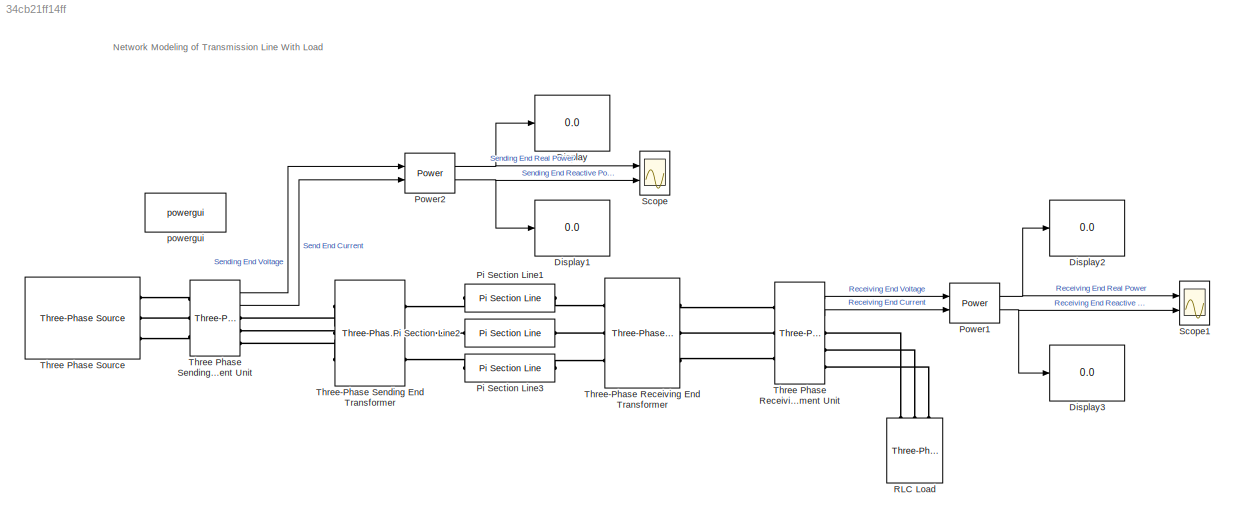
MODEL slx_34cb21ff14ff
KIND model
CONFIG AbsTol = auto
CONFIG EnableMultiTasking = off
CONFIG FixedStep = auto
CONFIG MaxStep = auto
CONFIG MinStep = auto
CONFIG RelTol = 1e-3
CONFIG SampleTimeConstraint = Unconstrained
CONFIG Solver = ode23tb
CONFIG SolverName = ode23tb
CONFIG StartTime = 0.0
CONFIG StopTime = 0.2
BLOCK [Display] Display
  Decimation = 1
  Ports = [1]
BLOCK [Display] Display1
  Decimation = 1
  Ports = [1]
BLOCK [Display] Display2
  Decimation = 1
  Ports = [1]
BLOCK [Display] Display3
  Decimation = 1
  Ports = [1]
BLOCK [Reference] Pi Section Line1  REF=powerlib/Elements/Pi Section Line
  AttributesFormatString = \n
  Ports = [0, 0, 0, 0, 0, 1, 1]
  SourceBlock = powerlib/Elements/Pi Section Line
  SourceProductBaseCode = PS
  SourceProductName = Simscape Power Systems
  SourceType = Pi Section Line
BLOCK [Reference] Pi Section Line2  REF=powerlib/Elements/Pi Section Line
  AttributesFormatString = \n
  Ports = [0, 0, 0, 0, 0, 1, 1]
  SourceBlock = powerlib/Elements/Pi Section Line
  SourceProductBaseCode = PS
  SourceProductName = Simscape Power Systems
  SourceType = Pi Section Line
BLOCK [Reference] Pi Section Line3  REF=powerlib/Elements/Pi Section Line
  AttributesFormatString = \n
  Ports = [0, 0, 0, 0, 0, 1, 1]
  SourceBlock = powerlib/Elements/Pi Section Line
  SourceProductBaseCode = PS
  SourceProductName = Simscape Power Systems
  SourceType = Pi Section Line
BLOCK [Reference] Power1  REF=powerlib_meascontrol/Measurements/Power
  Ports = [2, 2]
  SourceBlock = powerlib_meascontrol/Measurements/Power
  SourceProductBaseCode = PS
  SourceProductName = Simscape Power Systems
  SourceType = Power
BLOCK [Reference] Power2  REF=powerlib_meascontrol/Measurements/Power
  Ports = [2, 2]
  SourceBlock = powerlib_meascontrol/Measurements/Power
  SourceProductBaseCode = PS
  SourceProductName = Simscape Power Systems
  SourceType = Power
BLOCK [Reference] RLC Load  REF=powerlib/Elements/Three-Phase
Series RLC Load
  AttributesFormatString = \n
  Ports = [0, 0, 0, 0, 0, 3]
  SourceBlock = powerlib/Elements/Three-Phase\nSeries RLC Load
  SourceProductBaseCode = PS
  SourceProductName = Simscape Power Systems
  SourceType = Three-Phase Series RLC Load
BLOCK [Scope] Scope
  Floating = off
  NumInputPorts = 2
  Ports = [2]
  ScopeSpecificationString = Simulink.scopes.TimeScopeBlockCfg('CurrentConfiguration', extmgr.ConfigurationSet(extmgr.Configuration('Core','General UI',true),extmgr.Configuration('Core','Source UI',true),extmgr.Configuration('Sources','WiredSimulink',true,'DataLoggingVariableName','ScopeData1'),extmgr.Configuration('Visuals','Time Domain',true,'SerializedDisplays',{struct('MinYLimReal','325951.55518','MaxYLimReal','329425.576...<+2230ch>
BLOCK [Scope] Scope1
  Floating = off
  NumInputPorts = 2
  Ports = [2]
  ScopeSpecificationString = Simulink.scopes.TimeScopeBlockCfg('CurrentConfiguration', extmgr.ConfigurationSet(extmgr.Configuration('Core','General UI',true),extmgr.Configuration('Core','Source UI',true),extmgr.Configuration('Sources','WiredSimulink',true),extmgr.Configuration('Visuals','Time Domain',true,'SerializedDisplays',{struct('MinYLimReal','3202.33093','MaxYLimReal','3278.20973','YLabelReal','','MinYLimMag','3202.3309...<+2188ch>
BLOCK [Reference] Three Phase Receiving End Measurement Unit   REF=powerlib/Measurements/Three-Phase
V-I Measurement
  Ports = [0, 2, 0, 0, 0, 3, 3]
  SourceBlock = powerlib/Measurements/Three-Phase\nV-I Measurement
  SourceProductBaseCode = PS
  SourceProductName = Simscape Power Systems
  SourceType = Three-Phase VI Measurement
BLOCK [Reference] Three Phase Sending End Measurement Unit    REF=powerlib/Measurements/Three-Phase
V-I Measurement
  Ports = [0, 2, 0, 0, 0, 3, 3]
  SourceBlock = powerlib/Measurements/Three-Phase\nV-I Measurement
  SourceProductBaseCode = PS
  SourceProductName = Simscape Power Systems
  SourceType = Three-Phase VI Measurement
BLOCK [Reference] Three Phase Source  REF=powerlib/Electrical
Sources/Three-Phase Source
  Ports = [0, 0, 0, 0, 0, 0, 3]
  SourceBlock = powerlib/Electrical\nSources/Three-Phase Source
  SourceProductBaseCode = PS
  SourceProductName = Simscape Power Systems
  SourceType = Three-Phase Source
BLOCK [Reference] Three-Phase Receiving End Transformer   REF=powerlib/Elements/Three-Phase
Transformer
(Two Windings)
  Ports = [0, 0, 0, 0, 0, 3, 3]
  SourceBlock = powerlib/Elements/Three-Phase\nTransformer\n(Two Windings)
  SourceProductBaseCode = PS
  SourceProductName = Simscape Power Systems
  SourceType = Three-Phase Transformer (Two Windings)
BLOCK [Reference] Three-Phase Sending End Transformer  REF=powerlib/Elements/Three-Phase
Transformer
(Two Windings)
  Ports = [0, 0, 0, 0, 0, 3, 3]
  SourceBlock = powerlib/Elements/Three-Phase\nTransformer\n(Two Windings)
  SourceProductBaseCode = PS
  SourceProductName = Simscape Power Systems
  SourceType = Three-Phase Transformer (Two Windings)
BLOCK [Reference] powergui  REF=powerlib/powergui
  Ports = []
  Priority = 1
  SourceBlock = powerlib/powergui
  SourceProductBaseCode = PS
  SourceProductName = Simscape Power Systems
  SourceType = PSB option menu block
ANNOTATION (root): Network Modeling of Transmission Line With Load
NET Power1:1 -> Display2:1, Scope1:1
NET Power1:2 -> Display3:1, Scope1:2
NET Power2:1 -> Display:1, Scope:1
NET Power2:2 -> Display1:1, Scope:2
LINE Three Phase Receiving End Measurement Unit :1 -> Power1:1
LINE Three Phase Receiving End Measurement Unit :2 -> Power1:2
LINE Three Phase Sending End Measurement Unit  :1 -> Power2:1
LINE Three Phase Sending End Measurement Unit  :2 -> Power2:2
PLINE Pi Section Line1:LConn1 -- Three-Phase Sending End Transformer:RConn1
PLINE Pi Section Line1:RConn1 -- Three-Phase Receiving End Transformer :LConn1
PLINE Pi Section Line2:LConn1 -- Three-Phase Sending End Transformer:RConn2
PLINE Pi Section Line2:RConn1 -- Three-Phase Receiving End Transformer :LConn2
PLINE Pi Section Line3:LConn1 -- Three-Phase Sending End Transformer:RConn3
PLINE Pi Section Line3:RConn1 -- Three-Phase Receiving End Transformer :LConn3
PLINE RLC Load:LConn1 -- Three Phase Receiving End Measurement Unit :RConn1
PLINE RLC Load:LConn2 -- Three Phase Receiving End Measurement Unit :RConn2
PLINE RLC Load:LConn3 -- Three Phase Receiving End Measurement Unit :RConn3
PLINE Three Phase Receiving End Measurement Unit :LConn1 -- Three-Phase Receiving End Transformer :RConn1
PLINE Three Phase Receiving End Measurement Unit :LConn2 -- Three-Phase Receiving End Transformer :RConn2
PLINE Three Phase Receiving End Measurement Unit :LConn3 -- Three-Phase Receiving End Transformer :RConn3
PLINE Three Phase Sending End Measurement Unit  :LConn1 -- Three Phase Source:RConn1
PLINE Three Phase Sending End Measurement Unit  :LConn2 -- Three Phase Source:RConn2
PLINE Three Phase Sending End Measurement Unit  :LConn3 -- Three Phase Source:RConn3
PLINE Three Phase Sending End Measurement Unit  :RConn1 -- Three-Phase Sending End Transformer:LConn1
PLINE Three Phase Sending End Measurement Unit  :RConn2 -- Three-Phase Sending End Transformer:LConn2
PLINE Three Phase Sending End Measurement Unit  :RConn3 -- Three-Phase Sending End Transformer:LConn3
note: NET lines group one-source signal fan-out (src -> all destinations, sorted); 1:1 wires keep LINE
